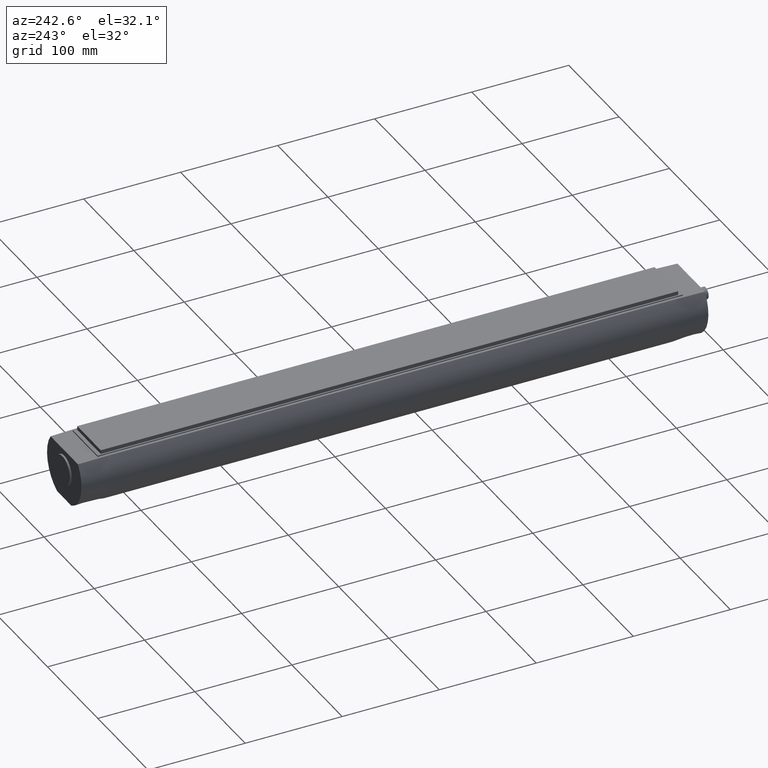
[diagram: clean part render]
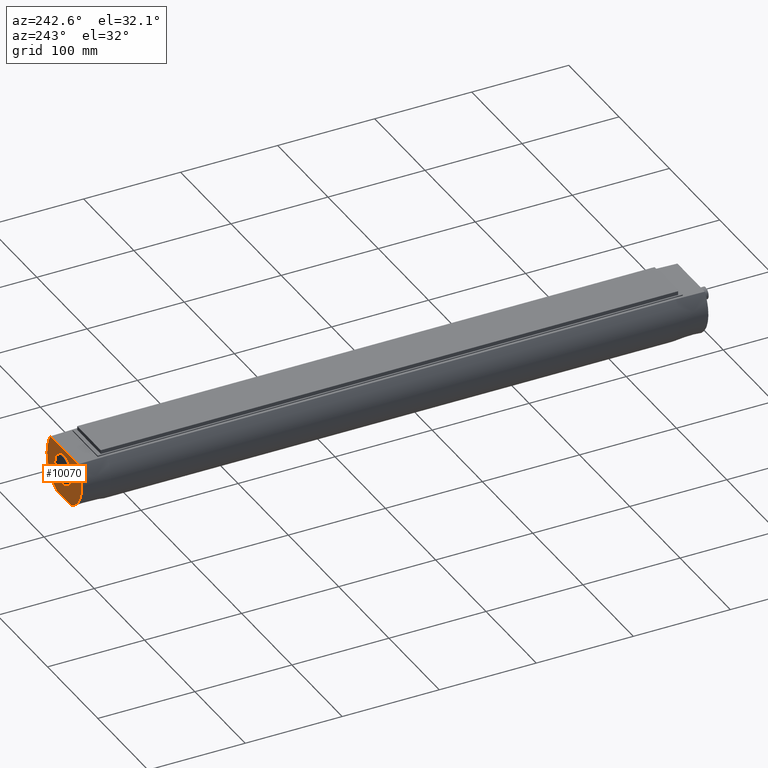
[diagram: same view with one face highlighted and labeled with its STEP entity id]
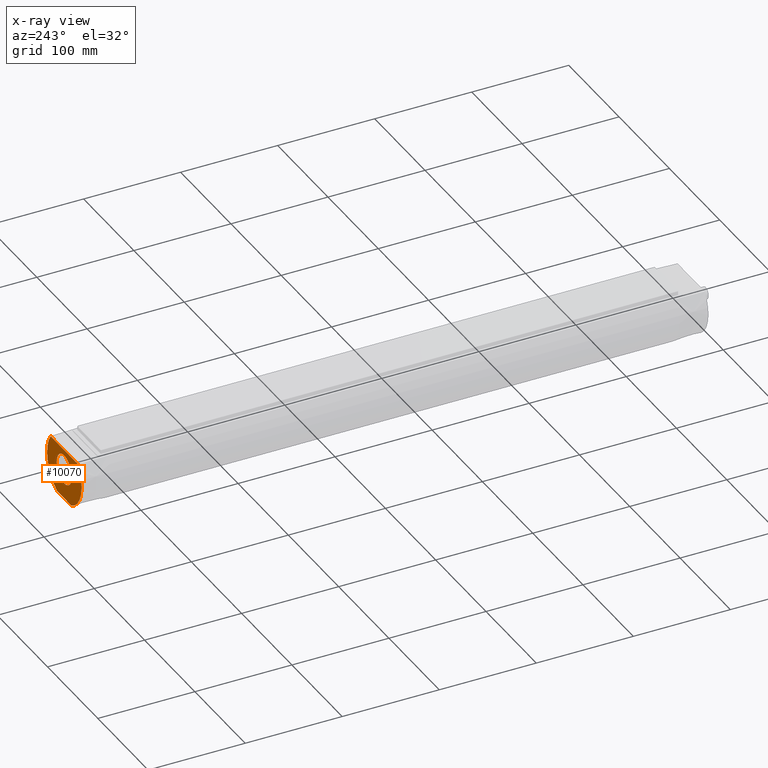
[diagram: x-ray of the same camera — body ghosted, the highlighted face saturated]
A machine part, auxiliary view. The second image highlights one B-rep face of the part: STEP entity #10070.
The next image is the same camera in x-ray: the body ghosted, the highlighted face saturated — about 0% of this face is hidden behind the body in this view.
In plain terms, the highlighted planar face has unit normal (0, 1, 0).
Its self-contained STEP definition (entity closure, byte-faithful):
#9220=CARTESIAN_POINT('',(27.2571830238552,20.7668157924422,648.));
#9230=VERTEX_POINT('',#9220);
#9260=CARTESIAN_POINT('',(0.,20.7668157924422,648.));
#9270=DIRECTION('',(1.,0.,0.));
#9280=VECTOR('',#9270,1.);
#9290=LINE('',#9260,#9280);
#9300=CARTESIAN_POINT('',(-27.2571830238552,20.7668157924421,648.));
#9310=VERTEX_POINT('',#9300);
#9320=EDGE_CURVE('',#9310,#9230,#9290,.T.);
#9600=CARTESIAN_POINT('',(-64.1216655749834,-36.470178950931,648.));
#9610=DIRECTION('',(0.,0.,1.));
#9620=DIRECTION('',(1.,0.,0.));
#9630=AXIS2_PLACEMENT_3D('',#9600,#9610,#9620);
#9640=PLANE('',#9630);
#9650=CARTESIAN_POINT('',(7.13436619494334E-13,-2.80569113088979E-13,
648.000000000002));
#9660=DIRECTION('',(-4.57008643783364E-14,1.82575551629924E-14,1.));
#9670=DIRECTION('',(-1.,0.,-4.57008643783364E-14));
#9680=AXIS2_PLACEMENT_3D('',#9650,#9660,#9670);
#9690=CIRCLE('',#9680,34.2668157924427);
#9700=CARTESIAN_POINT('',(-14.0214441037524,-31.2668157924422,648.));
#9710=VERTEX_POINT('',#9700);
#9720=EDGE_CURVE('',#9310,#9710,#9690,.T.);
#9730=ORIENTED_EDGE('',*,*,#9720,.T.);
#9740=ORIENTED_EDGE('',*,*,#9320,.F.);
#9750=CARTESIAN_POINT('',(2.15858374567904E-13,2.43244815377254E-13,
648.000000000002));
#9760=DIRECTION('',(-1.42685690847713E-14,-1.6063521642858E-14,1.));
#9770=DIRECTION('',(0.,-1.,-1.6063521642858E-14));
#9780=AXIS2_PLACEMENT_3D('',#9750,#9760,#9770);
#9790=CIRCLE('',#9780,34.266815792442);
#9800=CARTESIAN_POINT('',(14.0214441037524,-31.2668157924422,648.));
#9810=VERTEX_POINT('',#9800);
#9820=EDGE_CURVE('',#9810,#9230,#9790,.T.);
#9830=ORIENTED_EDGE('',*,*,#9820,.T.);
#9840=CARTESIAN_POINT('',(0.,-31.2668157924422,648.));
#9850=DIRECTION('',(1.,0.,0.));
#9860=VECTOR('',#9850,1.);
#9870=LINE('',#9840,#9860);
#9880=EDGE_CURVE('',#9710,#9810,#9870,.T.);
#9890=ORIENTED_EDGE('',*,*,#9880,.T.);
#9900=EDGE_LOOP('',(#9890,#9830,#9740,#9730));
#9910=FACE_OUTER_BOUND('',#9900,.T.);
#9920=CARTESIAN_POINT('',(-1.13589693206961E-14,-1.99840144432528E-15,
648.));
#9930=DIRECTION('',(0.,0.,-1.));
#9940=DIRECTION('',(1.,0.,0.));
#9950=AXIS2_PLACEMENT_3D('',#9920,#9930,#9940);
#9960=CIRCLE('',#9950,15.);
#9970=CARTESIAN_POINT('',(15.,-1.99840144432528E-15,648.));
#9980=VERTEX_POINT('',#9970);
#9990=CARTESIAN_POINT('',(-15.,-1.61431245604253E-16,648.));
#10000=VERTEX_POINT('',#9990);
#10010=EDGE_CURVE('',#9980,#10000,#9960,.T.);
#10020=ORIENTED_EDGE('',*,*,#10010,.T.);
#10030=EDGE_CURVE('',#10000,#9980,#9960,.T.);
#10040=ORIENTED_EDGE('',*,*,#10030,.T.);
#10050=EDGE_LOOP('',(#10040,#10020));
#10060=FACE_BOUND('',#10050,.T.);
#10070=ADVANCED_FACE('',(#9910,#10060),#9640,.T.);